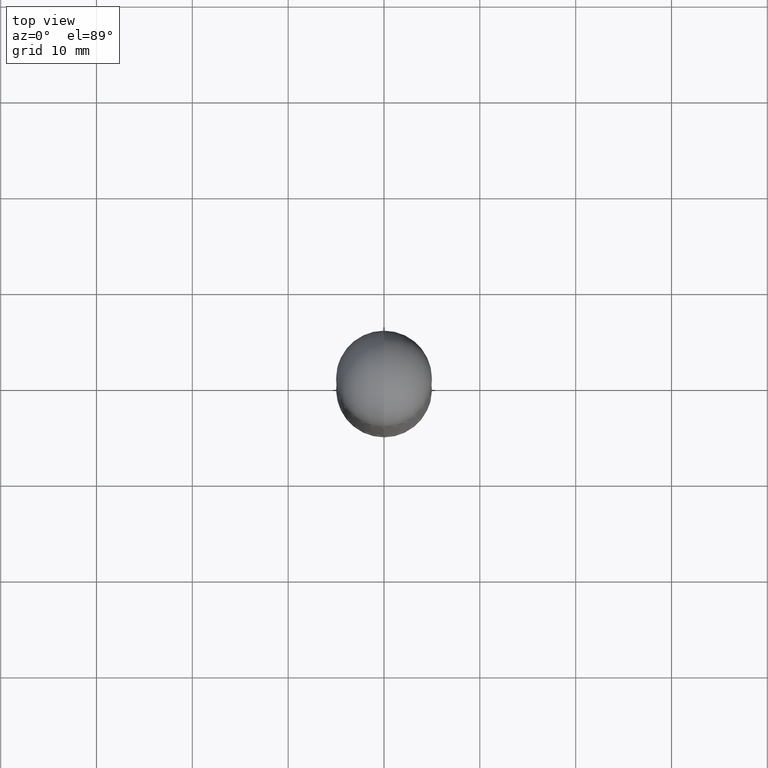
[diagram: clean part render]
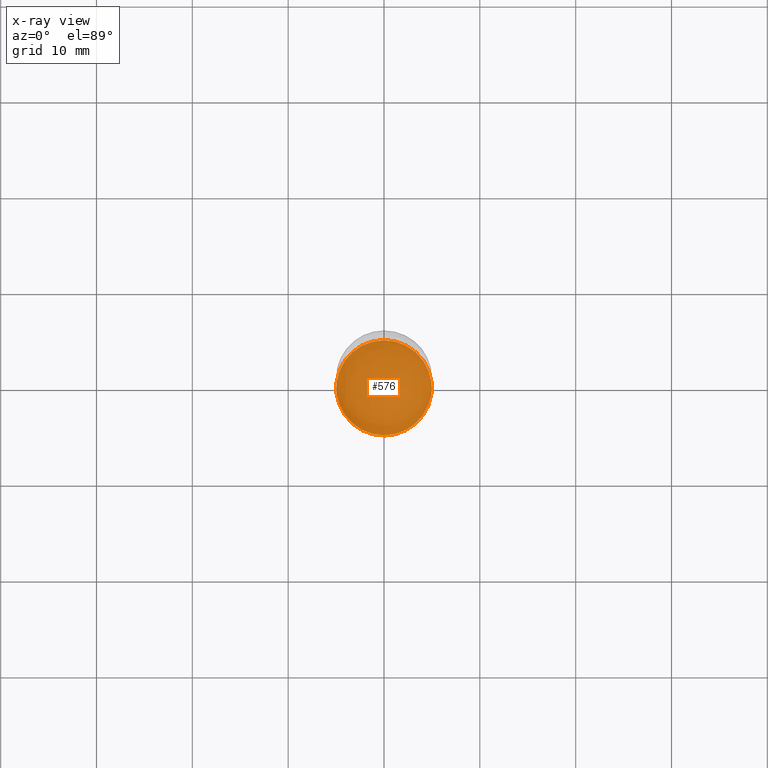
[diagram: x-ray — body ghosted, one internal face saturated and labeled with its STEP entity id]
A machine part, top view, then the same camera in x-ray: the body is ghosted and one INTERNAL B-rep face — a face not visible from any outside direction — is saturated and labeled: STEP entity #576.
In plain terms, the highlighted planar face has unit normal (-0, 0, 1).
Its self-contained STEP definition (entity closure, byte-faithful):
#1 = CIRCLE ( 'NONE', #315, 0.1958499999999999963 ) ;
#3 = AXIS2_PLACEMENT_3D ( 'NONE', #754, #382, #304 ) ;
#6 = EDGE_LOOP ( 'NONE', ( #474, #777 ) ) ;
#70 = VERTEX_POINT ( 'NONE', #212 ) ;
#212 = CARTESIAN_POINT ( 'NONE',  ( 1.395150661665017040E-15, 0.1958499999999916141, -2.401600000000000623 ) ) ;
#235 = PLANE ( 'NONE',  #742 ) ;
#237 = CARTESIAN_POINT ( 'NONE',  ( 5.872206617573653302E-29, -8.386332005538834175E-15, -2.401599999999999735 ) ) ;
#260 = EDGE_CURVE ( 'NONE', #370, #70, #1, .T. ) ;
#293 = DIRECTION ( 'NONE',  ( -2.445122675538663184E-29, 3.491977017629428547E-15, 1.000000000000000000 ) ) ;
#304 = DIRECTION ( 'NONE',  ( -6.982962677686265922E-15, -1.000000000000000000, 4.184602492209747448E-15 ) ) ;
#315 = AXIS2_PLACEMENT_3D ( 'NONE', #805, #293, #633 ) ;
#334 = EDGE_CURVE ( 'NONE', #70, #370, #428, .T. ) ;
#344 = FACE_OUTER_BOUND ( 'NONE', #6, .T. ) ;
#370 = VERTEX_POINT ( 'NONE', #568 ) ;
#382 = DIRECTION ( 'NONE',  ( -2.445122675538663184E-29, 3.491977017629428547E-15, 1.000000000000000000 ) ) ;
#428 = CIRCLE ( 'NONE', #3, 0.1958499999999999963 ) ;
#474 = ORIENTED_EDGE ( 'NONE', *, *, #260, .F. ) ;
#568 = CARTESIAN_POINT ( 'NONE',  ( -1.367613240424796429E-15, -0.1958500000000084063, -2.401599999999998847 ) ) ;
#576 = ADVANCED_FACE ( 'NONE', ( #344 ), #235, .F. ) ;
#633 = DIRECTION ( 'NONE',  ( -6.982962677686265922E-15, -1.000000000000000000, 4.184602492209747448E-15 ) ) ;
#679 = DIRECTION ( 'NONE',  ( -2.445122675538662904E-29, 3.491977017629428547E-15, 1.000000000000000000 ) ) ;
#742 = AXIS2_PLACEMENT_3D ( 'NONE', #237, #679, #807 ) ;
#754 = CARTESIAN_POINT ( 'NONE',  ( 5.872206617573653302E-29, -8.386332005538834175E-15, -2.401599999999999735 ) ) ;
#777 = ORIENTED_EDGE ( 'NONE', *, *, #334, .F. ) ;
#805 = CARTESIAN_POINT ( 'NONE',  ( 5.872206617573653302E-29, -8.386332005538834175E-15, -2.401599999999999735 ) ) ;
#807 = DIRECTION ( 'NONE',  ( -6.982962677686265922E-15, -1.000000000000000000, 3.491977017629428547E-15 ) ) ;